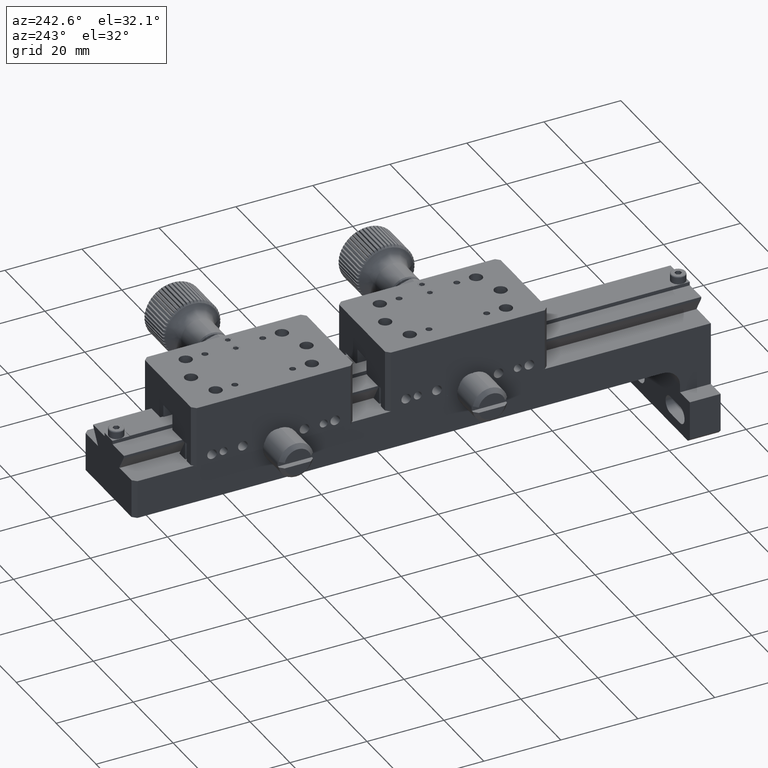
[diagram: clean part render]
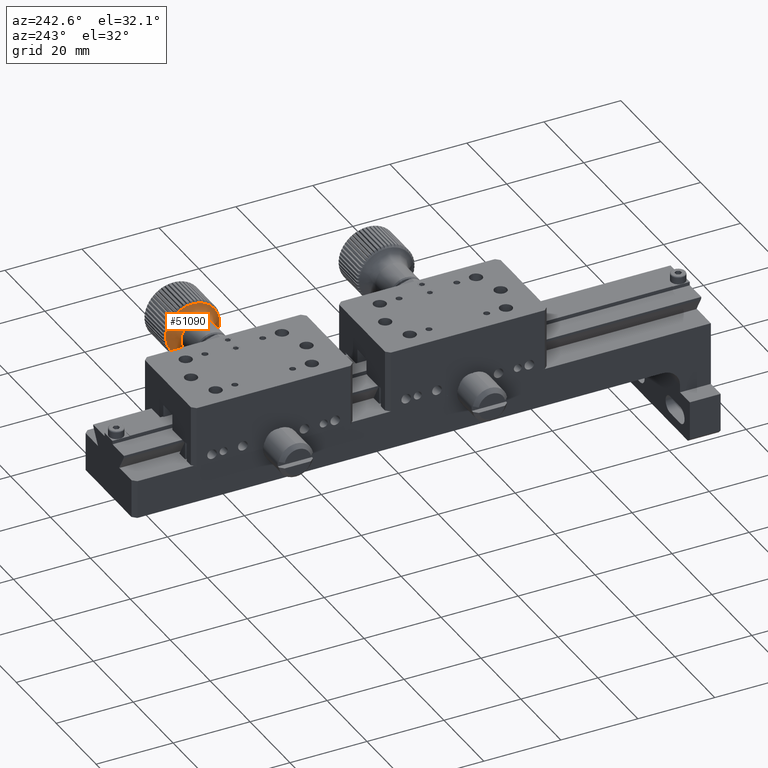
[diagram: same view with one face highlighted and labeled with its STEP entity id]
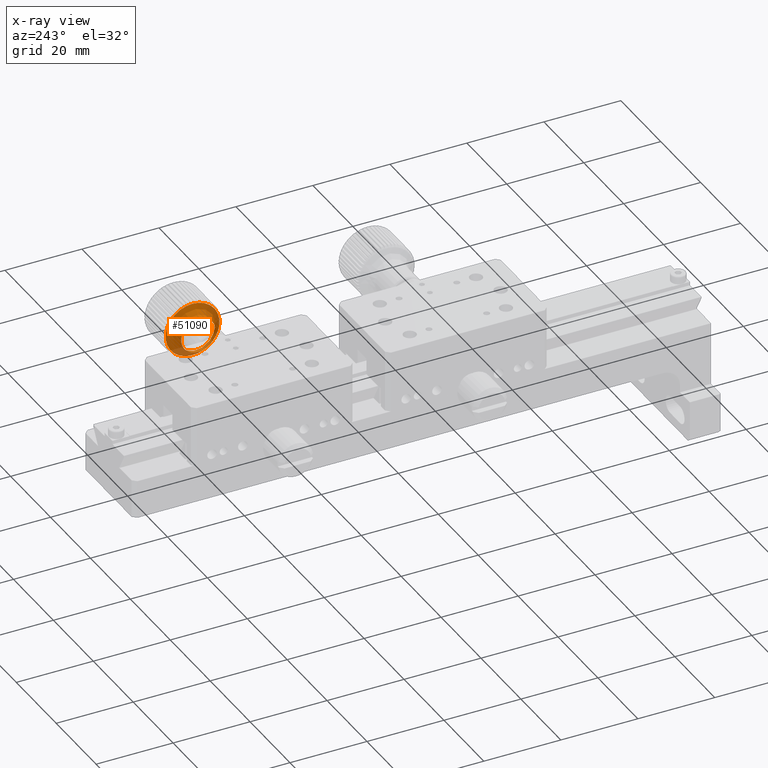
[diagram: x-ray of the same camera — body ghosted, the highlighted face saturated]
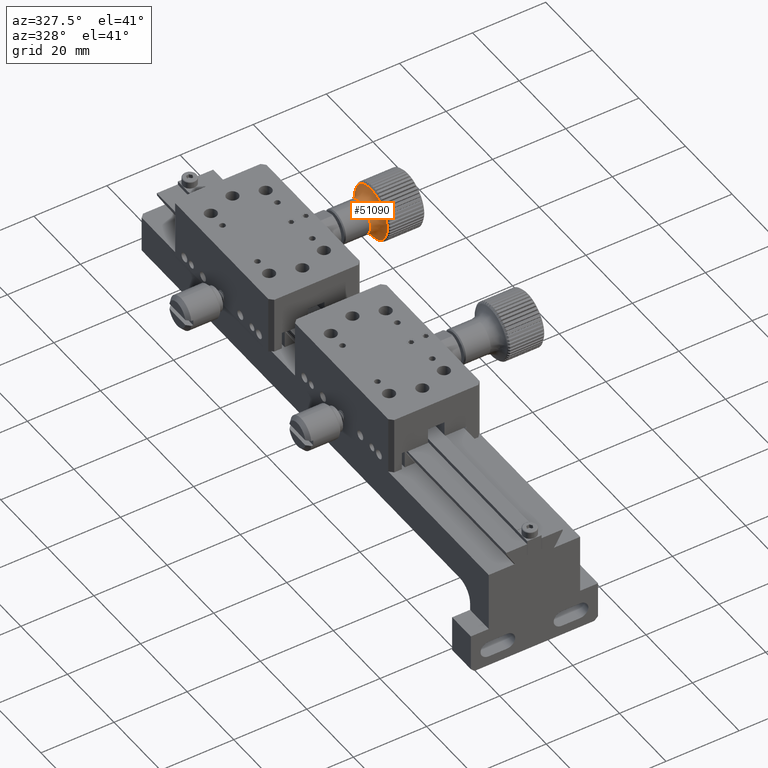
[diagram: same view with one face highlighted and labeled with its STEP entity id]
A machine part, auxiliary view. The second image highlights one B-rep face of the part: STEP entity #51090.
The next image is the same camera in x-ray: the body ghosted, the highlighted face saturated — about 14% of this face is hidden behind the body in this view.
A second angle (auxiliary view) of the same face is appended — the face is thin or edge-on in the first view.
In plain terms, the highlighted face is a freeform B-spline surface patch.
Its self-contained STEP definition (entity closure, byte-faithful):
#14564 = CARTESIAN_POINT ( 'NONE',  ( 2.426979308308022443, 48.82789910558070545, 14.97863551476651267 ) ) ;
#16834 = CARTESIAN_POINT ( 'NONE',  ( 2.426979308307097849, 50.27685247768949495, 1.053818312179809702 ) ) ;
#18293 = EDGE_LOOP ( 'NONE', ( #160305 ) ) ;
#29782 = CARTESIAN_POINT ( 'NONE',  ( 2.426979308308947036, 47.37894573347190175, 28.90345271735321475 ) ) ;
#30919 = CARTESIAN_POINT ( 'NONE',  ( 2.171592253696485564, 47.32512269715075348, 14.82226341214994036 ) ) ;
#33209 = CARTESIAN_POINT ( 'NONE',  ( 1.001261744426650280, 38.32112642838303174, 4.836755614585894314 ) ) ;
#34344 = CARTESIAN_POINT ( 'NONE',  ( 1.001261744427244471, 37.38965640345595887, 13.78842381624867564 ) ) ;
#50705 = CARTESIAN_POINT ( 'NONE',  ( 1.001261744427305977, 46.34132460511874285, 14.71989384117574318 ) ) ;
#51090 = ADVANCED_FACE ( 'NONE', ( #208419, #211849 ), #164816, .F. ) ;
#51866 = CARTESIAN_POINT ( 'NONE',  ( -0.5310605832425353556, 38.32112642838300332, 4.836755614585908525 ) ) ;
#56177 = CARTESIAN_POINT ( 'NONE',  ( 2.426979308307916749, 34.90308190299400337, 13.52968214265771962 ) ) ;
#57361 = DIRECTION ( 'NONE',  ( -6.167905692361983322E-15, -0.9946298001847644343, -0.1034966694363420314 ) ) ;
#69372 = CARTESIAN_POINT ( 'NONE',  ( 1.001261744426711564, 47.27279463004581572, 5.768225639512963632 ) ) ;
#73003 = CIRCLE ( 'NONE', #95530, 7.000000000000000888 ) ;
#74969 = EDGE_CURVE ( 'NONE', #123946, #123946, #188240, .T. ) ;
#80058 = AXIS2_PLACEMENT_3D ( 'NONE', #198677, #180020, #57361 ) ;
#82309 = EDGE_CURVE ( 'NONE', #179977, #179977, #73003, .T. ) ;
#95530 = AXIS2_PLACEMENT_3D ( 'NONE', #161127, #174066, #209110 ) ;
#96708 = EDGE_LOOP ( 'NONE', ( #208753 ) ) ;
#102141 = CARTESIAN_POINT ( 'NONE',  ( 1.001261744427839107, 36.45818637852888600, 22.74009201791145429 ) ) ;
#104418 = CARTESIAN_POINT ( 'NONE',  ( 2.426979308307926964, 34.90308190299400337, 13.52968214265771429 ) ) ;
#105559 = CARTESIAN_POINT ( 'NONE',  ( -0.5310605832424738493, 47.27279463004586546, 5.768225639512987613 ) ) ;
#108732 = CARTESIAN_POINT ( 'NONE',  ( -0.5310605832419407202, 37.38965640345591623, 13.78842381624877156 ) ) ;
#119665 = CARTESIAN_POINT ( 'NONE',  ( -0.5310605832419409422, 37.38965640345592334, 13.78842381624877156 ) ) ;
#120795 = CARTESIAN_POINT ( 'NONE',  ( 2.426979308307002814, 36.35203527510279997, -0.3951350599289884524 ) ) ;
#121943 = CARTESIAN_POINT ( 'NONE',  ( -0.5310605832412852445, 45.40985458019169840, 23.67156204283871190 ) ) ;
#123087 = CARTESIAN_POINT ( 'NONE',  ( -0.5310605832413460847, 36.45818637852884336, 22.74009201791163548 ) ) ;
#123946 = VERTEX_POINT ( 'NONE', #108732 ) ;
#154716 = CARTESIAN_POINT ( 'NONE',  ( -0.5310605832418795469, 46.34132460511878548, 14.71989384117585153 ) ) ;
#155863 = CARTESIAN_POINT ( 'NONE',  ( 1.001261744427900391, 45.40985458019166998, 23.67156204283852361 ) ) ;
#158151 = CARTESIAN_POINT ( 'NONE',  ( -0.5310605832419409422, 37.38965640345592334, 13.78842381624877156 ) ) ;
#160305 = ORIENTED_EDGE ( 'NONE', *, *, #82309, .F. ) ;
#161127 = CARTESIAN_POINT ( 'NONE',  ( 2.426979308307958050, 41.86549050428735086, 14.25415882871211615 ) ) ;
#164816 =( BOUNDED_SURFACE ( )  B_SPLINE_SURFACE ( 3, 3, ( 
 ( #119665, #51866, #105559, #154716, #121943, #123087, #158151 ),
 ( #34344, #33209, #69372, #50705, #155863, #102141, #209557 ),
 ( #189765, #176808, #173380, #30919, #175658, #193184, #172236 ),
 ( #225938, #120795, #16834, #14564, #29782, #230513, #104418 ) ),
 .UNSPECIFIED., .F., .T., .T. ) 
 B_SPLINE_SURFACE_WITH_KNOTS ( ( 4, 4 ),
 ( 4, 3, 4 ),
 ( 0.000000000000000000, 1.000000000000000000 ),
 ( 0.000000000000000000, 0.5000000000000000000, 1.000000000000000000 ),
 .UNSPECIFIED. ) 
 GEOMETRIC_REPRESENTATION_ITEM ( )  RATIONAL_B_SPLINE_SURFACE ( (
 ( 1.000000000000000000, 0.3333333333333333148, 0.3333333333333333148, 1.000000000000000000, 0.3333333333333333148, 0.3333333333333333148, 1.000000000000000000),
 ( 0.8425084105506428500, 0.2808361368502142463, 0.2808361368502142463, 0.8425084105506428500, 0.2808361368502142463, 0.2808361368502142463, 0.8425084105506428500),
 ( 0.8425084105506428500, 0.2808361368502142463, 0.2808361368502142463, 0.8425084105506428500, 0.2808361368502142463, 0.2808361368502142463, 0.8425084105506428500),
 ( 1.000000000000000000, 0.3333333333333333148, 0.3333333333333333148, 1.000000000000000000, 0.3333333333333333148, 0.3333333333333333148, 1.000000000000000000) ) ) 
 REPRESENTATION_ITEM ( '' )  SURFACE ( )  );
#172236 = CARTESIAN_POINT ( 'NONE',  ( 2.171592253696410069, 36.40585831142395534, 13.68605424527432390 ) ) ;
#173380 = CARTESIAN_POINT ( 'NONE',  ( 2.171592253695759922, 48.46133186402636994, 3.902999026423144446 ) ) ;
#174066 = DIRECTION ( 'NONE',  ( 1.000000000000000000, 9.195162568877400879E-16, -6.630359850644110404E-14 ) ) ;
#175658 = CARTESIAN_POINT ( 'NONE',  ( 2.171592253697210761, 46.18891353027513702, 25.74152779787673495 ) ) ;
#176808 = CARTESIAN_POINT ( 'NONE',  ( 2.171592253695685315, 37.54206747829957180, 2.766789859547527097 ) ) ;
#179977 = VERTEX_POINT ( 'NONE', #56177 ) ;
#180020 = DIRECTION ( 'NONE',  ( -1.000000000000000000, -7.632783294297768791E-17, 6.639133687258439898E-14 ) ) ;
#188240 = CIRCLE ( 'NONE', #80058, 4.499999999999998224 ) ;
#189765 = CARTESIAN_POINT ( 'NONE',  ( 2.171592253696410069, 36.40585831142395534, 13.68605424527432390 ) ) ;
#193184 = CARTESIAN_POINT ( 'NONE',  ( 2.171592253697135710, 35.26964914454833888, 24.60531863100112204 ) ) ;
#198677 = CARTESIAN_POINT ( 'NONE',  ( -0.5310605832419129646, 41.86549050428735086, 14.25415882871230977 ) ) ;
#208419 = FACE_OUTER_BOUND ( 'NONE', #96708, .T. ) ;
#208753 = ORIENTED_EDGE ( 'NONE', *, *, #74969, .F. ) ;
#209110 = DIRECTION ( 'NONE',  ( -5.947623346206194738E-15, -0.9946298001847644343, -0.1034966694363421980 ) ) ;
#209557 = CARTESIAN_POINT ( 'NONE',  ( 1.001261744427244471, 37.38965640345595887, 13.78842381624867564 ) ) ;
#211849 = FACE_OUTER_BOUND ( 'NONE', #18293, .T. ) ;
#225938 = CARTESIAN_POINT ( 'NONE',  ( 2.426979308307926964, 34.90308190299400337, 13.52968214265771429 ) ) ;
#230513 = CARTESIAN_POINT ( 'NONE',  ( 2.426979308308852001, 33.45412853088520677, 27.45449934524441815 ) ) ;